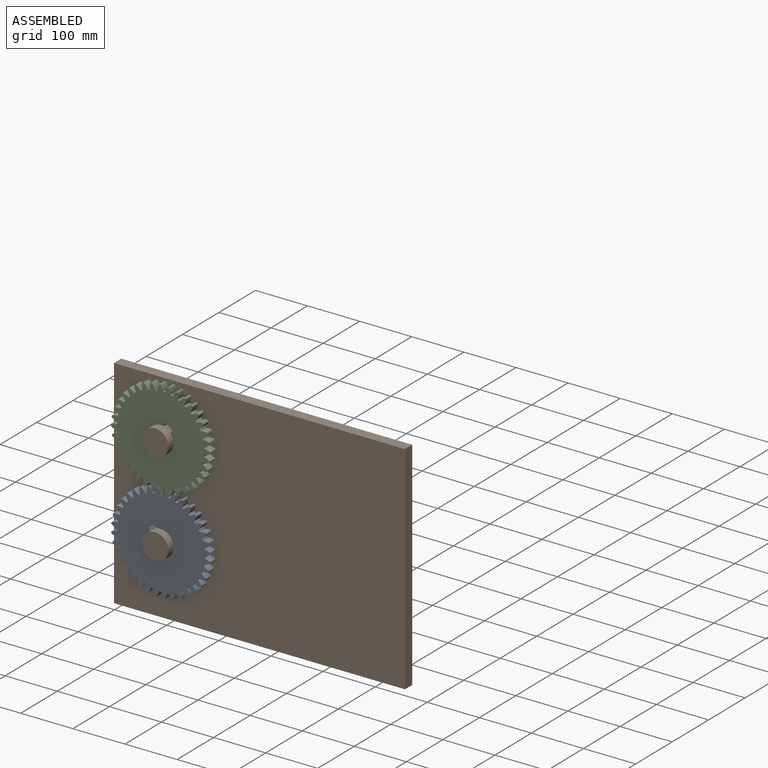
[diagram: assembled view]
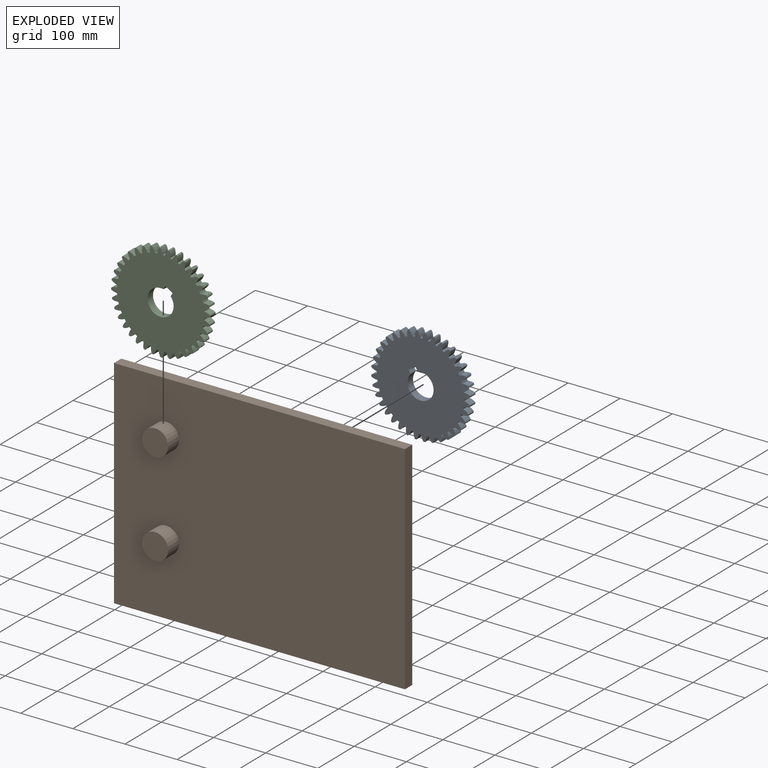
[diagram: exploded view]
GUIDED TOUR — MATED ASSEMBLY (Onshape document 58bb1fac79d0480fcb280c56, AutoMate assembly 58bb1fac79d0480fcb280c56_be9ed5924c863924a831c99a_123c82b034babf95d83967b3_default)

This assembly has 3 components, labeled P0..P2 below (a component is one placed occurrence of a part; the same part can appear more than once), held together by 2 mates. A mate is a constraint between two components; its type names the relative motion it leaves free:
  REVOLUTE — leaves rotation about the listed axis free (a hinge).
Axis/direction vectors are unit vectors and 'through' points are millimeter coordinates, both in the assembly's world frame.

MATES
  1. REVOLUTE "Revolute 2": P2 <-> P1, axis (0.000, 1.000, 0.000) through (-201.82, 0.86, 121.60) mm
  2. REVOLUTE "Revolute 1": P0 <-> P1, axis (0.000, 1.000, 0.000) through (-201.82, 0.86, -58.40) mm

ASSEMBLY ORDER
  1. P1 — the base component [order heuristic]
  2. P0 — core [order heuristic]
  3. P2 [order verified]
Order-tag legend:
  [order verified] — this step's position reverses a verified removal order: the component was checked to insert without passing through the ones already placed.
  [order heuristic] — the first 2 components form the assembly's core: parts whose collision-free extraction could not be verified, listed in mate-graph order.

Of the 3 components, 3 carry the full construction recipe — the FeatureScript program that regenerates the part's solid from scratch; the rest are supplied as boundary geometry only.
Each toured component is shown spotlighted twice — in the assembled view, then in the exploded view, where a leader line traces a displaced component back to its assembled socket (saturated green if recipe-attached, orange if geometry-only; every other component desaturated gray) — followed by its recipe or geometry summary and the mates that hold it.
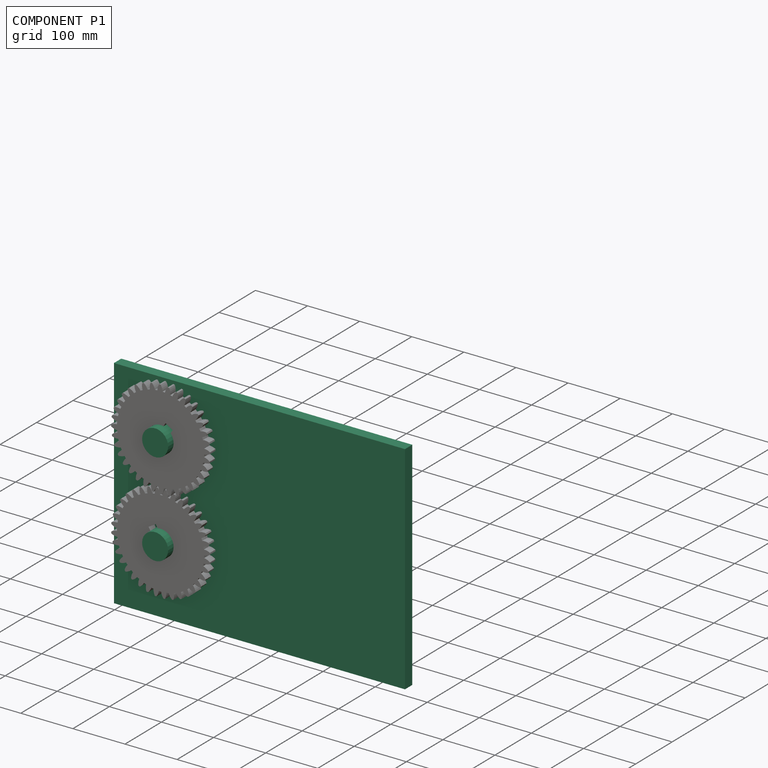
[diagram: component P1 — assembled]
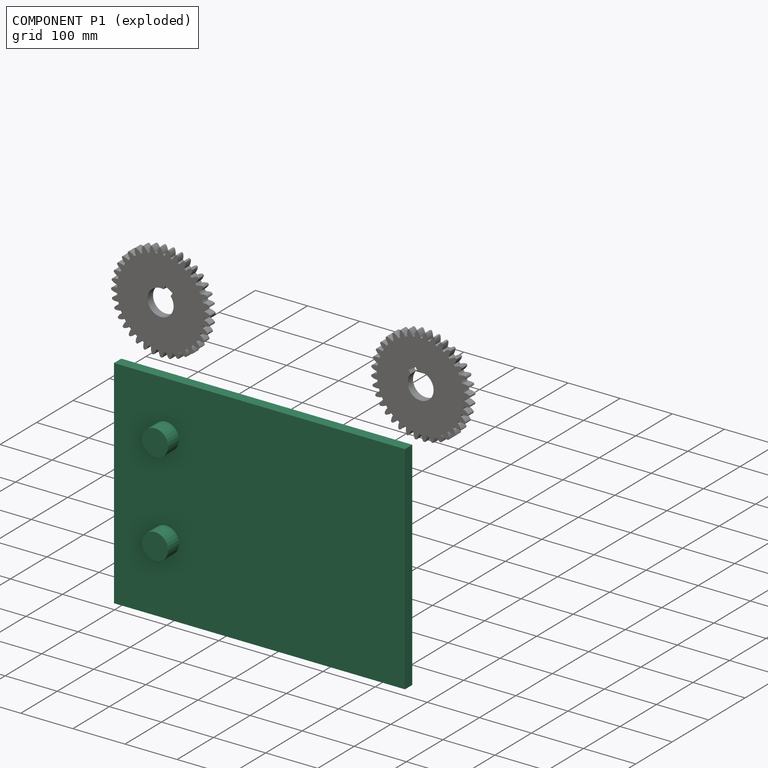
[diagram: component P1 — exploded]
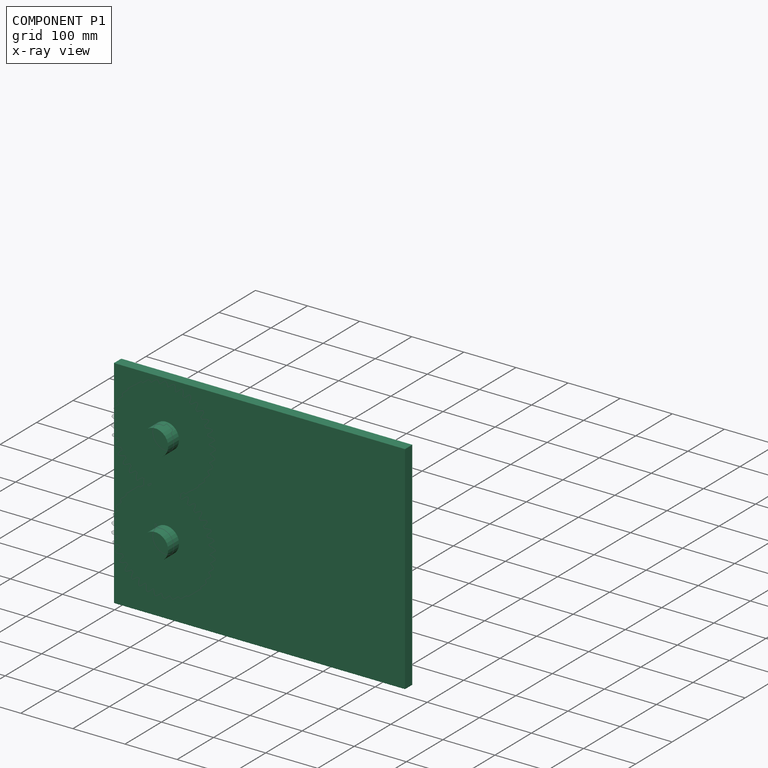
[diagram: component P1 — x-ray view]
COMPONENT P1 — recipe-attached (CADFS 00586321, mesh-verified: the recipe's output STEP matches this component's geometry to below the mesh-comparison resolution (tessellation chordal tolerance ~1.05 mm)).
Held by: REVOLUTE mate "Revolute 2" to P2; REVOLUTE mate "Revolute 1" to P0.
Construction recipe (FeatureScript — the CAD program that rebuilds this solid; sketch coordinates are in the units given by the * unit suffixes, e.g. mm):

FeatureScript 1511;
import(path : "onshape/std/geometry.fs", version : "1511.0");
import(path : "onshape/std/common.fs", version : "1511.0");
const mm = millimeter;
const VERTEX = EntityType.VERTEX;
const EDGE = EntityType.EDGE;
const FACE = EntityType.FACE;
const BODY = EntityType.BODY;
function v(x, y){return vector(x, y);}
function OD(order){return orderDisambiguation(order);}
function OSD(set){return originalSetDisambiguation(set);}
function TD(topology){return topologyDisambiguation(topology);}
function TDD(query){return trueDependencyDisambiguation(query);}
function sQuery(a, b, c) {return sketchEntityQuery(a, b, c);}

annotation { "Feature Type Name" : "Feature", "Feature Type Description" : "" }
export const myFeature = defineFeature(function(context is Context, id is Id, definition is map)
    precondition{}
    {
        {
            var Q0;
            Q0=qCreatedBy(makeId("Front.planeOp"),FACE);
            var sketch = newSketch(context, id + "F0", { "sketchPlane" : qUnion([Q0])});
            skLineSegment(sketch, "E0.bottom", {"start": v(-276.06, 152.14) * mm, "end": v(282.52, 152.14) * mm});
            skLineSegment(sketch, "E0.top", {"start": v(-276.06, -264.48) * mm, "end": v(282.52, -264.48) * mm});
            skLineSegment(sketch, "E0.left", {"start": v(-276.06, 152.14) * mm, "end": v(-276.06, -264.48) * mm});
            skLineSegment(sketch, "E0.right", {"start": v(282.52, 152.14) * mm, "end": v(282.52, -264.48) * mm});
            skPoint(sketch, "E1", {"position": v(-176.06, 52.14) * mm});
            skCircle(sketch, "E2", {"center": v(-176.06, 52.14) * mm, "radius": 25 * mm});
            skCircle(sketch, "E3", {"center": v(-176.06, -127.86) * mm, "radius": 25 * mm});
            skLineSegment(sketch, "E4", {"start": v(-176.06, 52.14) * mm, "end": v(-176.06, -295.36) * mm, "construction": true});
            skSolve(sketch);
        }
        {
            var Q0;
            Q0=makeQuery(id+"F0.imprint","IMPRINT",FACE,{"disambiguationData":[TD([[makeQuery(id+"F0.imprint","IMPRINT",EDGE,{"derivedFrom":sQuery(id+"F0.wireOp",EDGE,"E0.bottom")}),-1.0]])]});
            var Q1;
            Q1=makeQuery(id+"F0.imprint","IMPRINT",FACE,{"disambiguationData":[TD([[makeQuery(id+"F0.imprint","IMPRINT",EDGE,{"derivedFrom":sQuery(id+"F0.wireOp",EDGE,"E2")}),1.0]])]});
            var Q2;
            Q2=makeQuery(id+"F0.imprint","IMPRINT",FACE,{"disambiguationData":[TD([[makeQuery(id+"F0.imprint","IMPRINT",EDGE,{"derivedFrom":sQuery(id+"F0.wireOp",EDGE,"E3")}),1.0]])]});
            extrude(context, id + "F1", {"entities" : qUnion([Q0, Q1, Q2]), "oppositeDirection" : true, "depth" : 20 * mm, "offsetDistance" : 25.4 * mm});
        }
        {
            var Q0;
            Q0=makeQuery(id+"F0.imprint","IMPRINT",FACE,{"disambiguationData":[TD([[makeQuery(id+"F0.imprint","IMPRINT",EDGE,{"derivedFrom":sQuery(id+"F0.wireOp",EDGE,"E2")}),1.0]])]});
            var Q1;
            Q1=makeQuery(id+"F0.imprint","IMPRINT",FACE,{"disambiguationData":[TD([[makeQuery(id+"F0.imprint","IMPRINT",EDGE,{"derivedFrom":sQuery(id+"F0.wireOp",EDGE,"E3")}),1.0]])]});
            extrude(context, id + "F2", {"entities" : qUnion([Q0, Q1]), "operationType" : NewBodyOperationType.ADD, "depth" : 30 * mm, "offsetDistance" : 25.4 * mm});
        }
    });
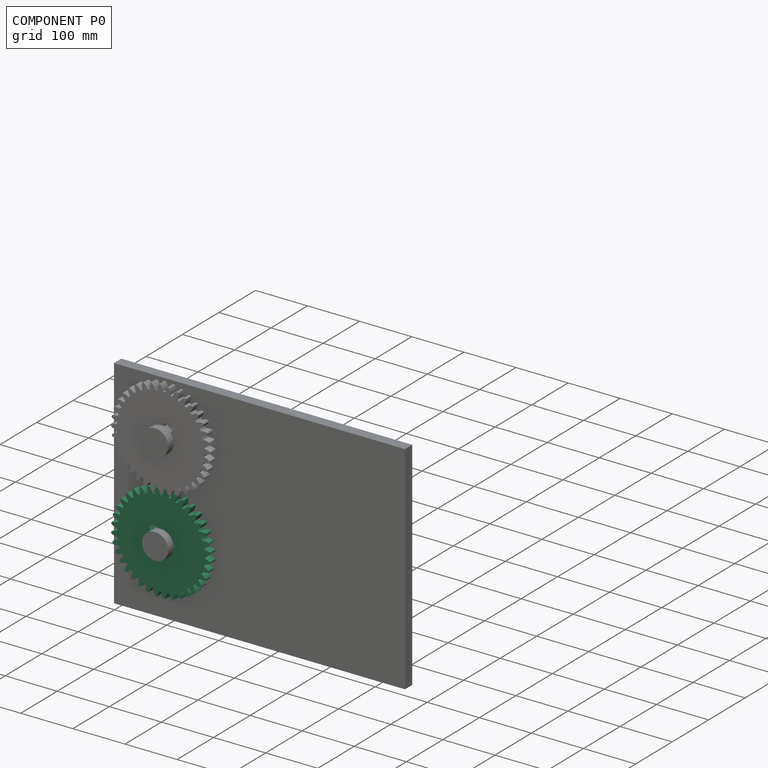
[diagram: component P0 — assembled]
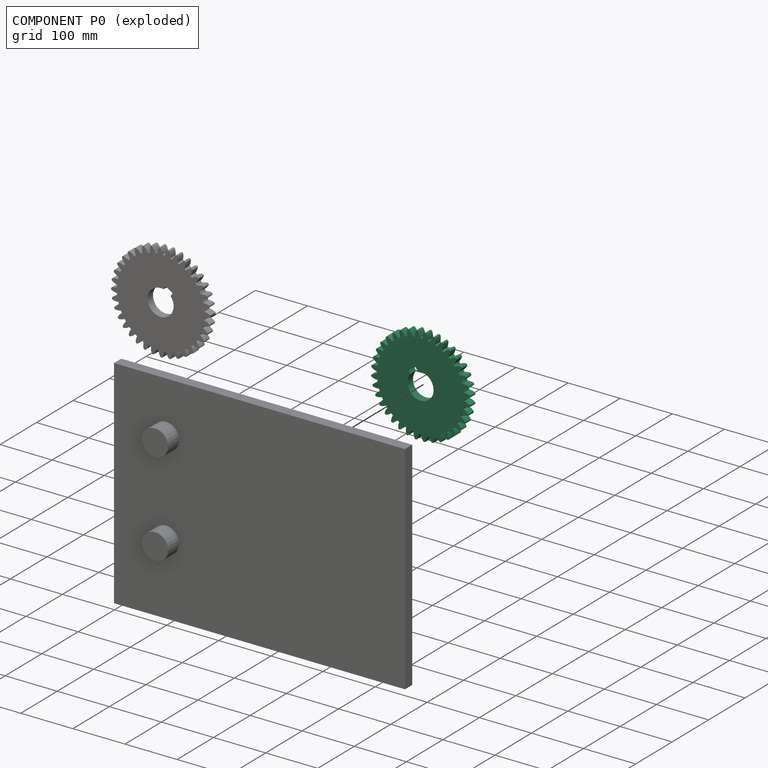
[diagram: component P0 — exploded]
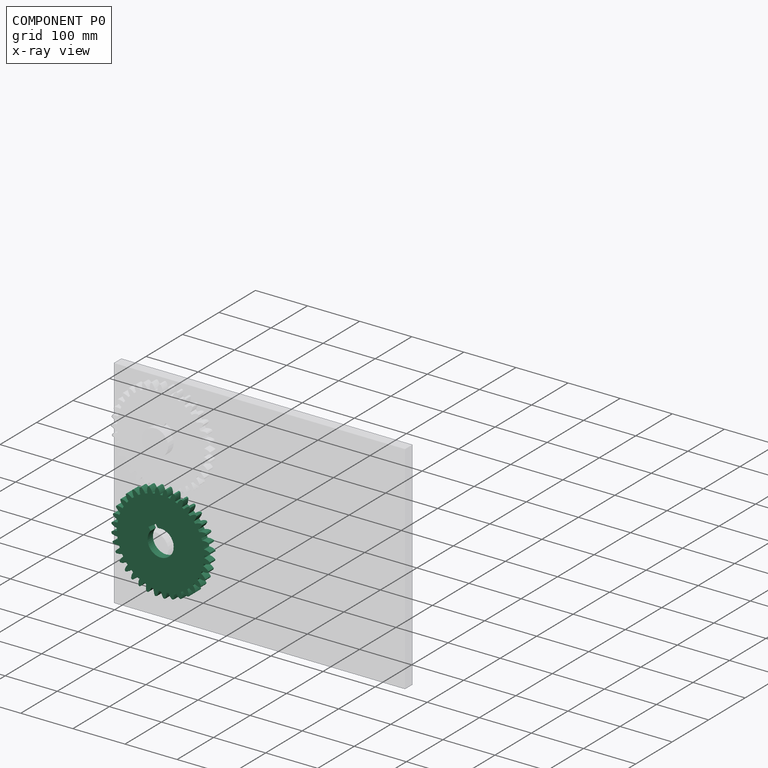
[diagram: component P0 — x-ray view]
COMPONENT P0 — recipe-attached (CADFS 00586315, mesh-verified: the recipe's output STEP matches this component's geometry to below the mesh-comparison resolution (tessellation chordal tolerance ~0.404 mm)).
Held by: REVOLUTE mate "Revolute 1" to P1.
Construction recipe (FeatureScript — the CAD program that rebuilds this solid; sketch coordinates are in the units given by the * unit suffixes, e.g. mm):

FeatureScript 1511;
import(path : "onshape/std/geometry.fs", version : "1511.0");
import(path : "onshape/std/common.fs", version : "1511.0");
const mm = millimeter;
const VERTEX = EntityType.VERTEX;
const EDGE = EntityType.EDGE;
const FACE = EntityType.FACE;
const BODY = EntityType.BODY;
function v(x, y){return vector(x, y);}
function OD(order){return orderDisambiguation(order);}
function OSD(set){return originalSetDisambiguation(set);}
function TD(topology){return topologyDisambiguation(topology);}
function TDD(query){return trueDependencyDisambiguation(query);}
function sQuery(a, b, c) {return sketchEntityQuery(a, b, c);}

annotation { "Feature Type Name" : "Feature", "Feature Type Description" : "" }
export const myFeature = defineFeature(function(context is Context, id is Id, definition is map)
    precondition{}
    {
        {
            var Q0;
            Q0=qCreatedBy(makeId("Front.planeOp"),FACE);
            var sketch = newSketch(context, id + "F0", { "sketchPlane" : qUnion([Q0])});
            skCircle(sketch, "E0", {"center": v(0, 0) * mm, "radius": 83.75 * mm});
            skCircle(sketch, "E1", {"center": v(0, 0) * mm, "radius": 90 * mm, "construction": true});
            skCircle(sketch, "E2", {"center": v(0, 0) * mm, "radius": 95 * mm, "construction": true});
            skLineSegment(sketch, "E3", {"start": v(0, 0) * mm, "end": v(0, 97.65) * mm, "construction": true});
            skLineSegment(sketch, "E4", {"start": v(0, 0) * mm, "end": v(-7.83, 179.33) * mm, "construction": true});
            skLineSegment(sketch, "E5", {"start": v(0, 90) * mm, "end": v(-217.65, 90) * mm, "construction": true});
            skLineSegment(sketch, "E6", {"start": v(0, 90) * mm, "end": v(-200.71, 16.95) * mm, "construction": true});
            skCircle(sketch, "E7", {"center": v(0, 0) * mm, "radius": 84.57 * mm, "construction": true});
            skCircle(sketch, "E8", {"center": v(0, 90) * mm, "radius": 22.5 * mm, "construction": true});
            skArc(sketch, "E9", {"start": v(0, 90) * mm, "mid": v(-1.18, 92.57) * mm, "end": v(-2.66, 94.96) * mm});
            skArc(sketch, "E10", {"start": v(1.43, 83.74) * mm, "mid": v(0.94, 86.92) * mm, "end": v(0, 90) * mm});
            skArc(sketch, "E11.MirrorCS", {"start": v(-8.72, 83.3) * mm, "mid": v(-8.5, 86.5) * mm, "end": v(-7.84, 89.66) * mm});
            skArc(sketch, "E12.MirrorCS", {"start": v(-7.84, 89.66) * mm, "mid": v(-6.9, 92.32) * mm, "end": v(-5.62, 94.83) * mm});
            skArc(sketch, "E13", {"start": v(-5.62, 94.83) * mm, "mid": v(-4.14, 94.9) * mm, "end": v(-2.66, 94.96) * mm});
            skSolve(sketch);
        }
        {
            var Q0;
            Q0=qSketchRegion(id+"F0",true);
            extrude(context, id + "F1", {"entities" : qUnion([Q0]), "depth" : 15 * mm, "offsetDistance" : 25.4 * mm});
        }
        {
            var Q0;
            Q0=makeQuery(id+"F1.opExtrude","SWEPT_BODY",BODY,{"disambiguationData":[OSD([sQuery(id+"F0.wireOp",EDGE,"E0"),sQuery(id+"F0.wireOp",EDGE,"E9"),sQuery(id+"F0.wireOp",EDGE,"E10"),sQuery(id+"F0.wireOp",EDGE,"E11.MirrorCS"),sQuery(id+"F0.wireOp",EDGE,"E12.MirrorCS"),sQuery(id+"F0.wireOp",EDGE,"E13")])]});
            var Q1;
            Q1=makeQuery(id+"F1.opExtrude","SWEPT_FACE",FACE,{"disambiguationData":[OSD([sQuery(id+"F0.wireOp",EDGE,"E0")])]});
            circularPattern(context, id + "F2", {"entities" : qUnion([Q0]), "axis" : qUnion([Q1]), "angle" : 360 * degree, "instanceCount" : 36, "equalSpace" : true});
        }
        {
            var Q0;
            Q0=makeQuery(id+"F2.opPattern","COPY",BODY,{"derivedFrom":makeQuery(id+"F1.opExtrude","SWEPT_BODY",BODY,{"disambiguationData":[OSD([sQuery(id+"F0.wireOp",EDGE,"E0"),sQuery(id+"F0.wireOp",EDGE,"E9"),sQuery(id+"F0.wireOp",EDGE,"E10"),sQuery(id+"F0.wireOp",EDGE,"E11.MirrorCS"),sQuery(id+"F0.wireOp",EDGE,"E12.MirrorCS"),sQuery(id+"F0.wireOp",EDGE,"E13")])]}),"instanceName":"17"});
            var Q1;
            Q1=makeQuery(id+"F2.opPattern","COPY",BODY,{"derivedFrom":makeQuery(id+"F1.opExtrude","SWEPT_BODY",BODY,{"disambiguationData":[OSD([sQuery(id+"F0.wireOp",EDGE,"E0"),sQuery(id+"F0.wireOp",EDGE,"E9"),sQuery(id+"F0.wireOp",EDGE,"E10"),sQuery(id+"F0.wireOp",EDGE,"E11.MirrorCS"),sQuery(id+"F0.wireOp",EDGE,"E12.MirrorCS"),sQuery(id+"F0.wireOp",EDGE,"E13")])]}),"instanceName":"13"});
            var Q2;
            Q2=makeQuery(id+"F1.opExtrude","SWEPT_BODY",BODY,{"disambiguationData":[OSD([sQuery(id+"F0.wireOp",EDGE,"E0"),sQuery(id+"F0.wireOp",EDGE,"E9"),sQuery(id+"F0.wireOp",EDGE,"E10"),sQuery(id+"F0.wireOp",EDGE,"E11.MirrorCS"),sQuery(id+"F0.wireOp",EDGE,"E12.MirrorCS"),sQuery(id+"F0.wireOp",EDGE,"E13")])]});
            var Q3;
            Q3=makeQuery(id+"F2.opPattern","COPY",BODY,{"derivedFrom":makeQuery(id+"F1.opExtrude","SWEPT_BODY",BODY,{"disambiguationData":[OSD([sQuery(id+"F0.wireOp",EDGE,"E0"),sQuery(id+"F0.wireOp",EDGE,"E9"),sQuery(id+"F0.wireOp",EDGE,"E10"),sQuery(id+"F0.wireOp",EDGE,"E11.MirrorCS"),sQuery(id+"F0.wireOp",EDGE,"E12.MirrorCS"),sQuery(id+"F0.wireOp",EDGE,"E13")])]}),"instanceName":"7"});
            var Q4;
            Q4=makeQuery(id+"F2.opPattern","COPY",BODY,{"derivedFrom":makeQuery(id+"F1.opExtrude","SWEPT_BODY",BODY,{"disambiguationData":[OSD([sQuery(id+"F0.wireOp",EDGE,"E0"),sQuery(id+"F0.wireOp",EDGE,"E9"),sQuery(id+"F0.wireOp",EDGE,"E10"),sQuery(id+"F0.wireOp",EDGE,"E11.MirrorCS"),sQuery(id+"F0.wireOp",EDGE,"E12.MirrorCS"),sQuery(id+"F0.wireOp",EDGE,"E13")])]}),"instanceName":"18"});
            var Q5;
            Q5=makeQuery(id+"F2.opPattern","COPY",BODY,{"derivedFrom":makeQuery(id+"F1.opExtrude","SWEPT_BODY",BODY,{"disambiguationData":[OSD([sQuery(id+"F0.wireOp",EDGE,"E0"),sQuery(id+"F0.wireOp",EDGE,"E9"),sQuery(id+"F0.wireOp",EDGE,"E10"),sQuery(id+"F0.wireOp",EDGE,"E11.MirrorCS"),sQuery(id+"F0.wireOp",EDGE,"E12.MirrorCS"),sQuery(id+"F0.wireOp",EDGE,"E13")])]}),"instanceName":"3"});
            var Q6;
            Q6=makeQuery(id+"F2.opPattern","COPY",BODY,{"derivedFrom":makeQuery(id+"F1.opExtrude","SWEPT_BODY",BODY,{"disambiguationData":[OSD([sQuery(id+"F0.wireOp",EDGE,"E0"),sQuery(id+"F0.wireOp",EDGE,"E9"),sQuery(id+"F0.wireOp",EDGE,"E10"),sQuery(id+"F0.wireOp",EDGE,"E11.MirrorCS"),sQuery(id+"F0.wireOp",EDGE,"E12.MirrorCS"),sQuery(id+"F0.wireOp",EDGE,"E13")])]}),"instanceName":"16"});
            var Q7;
            Q7=makeQuery(id+"F2.opPattern","COPY",BODY,{"derivedFrom":makeQuery(id+"F1.opExtrude","SWEPT_BODY",BODY,{"disambiguationData":[OSD([sQuery(id+"F0.wireOp",EDGE,"E0"),sQuery(id+"F0.wireOp",EDGE,"E9"),sQuery(id+"F0.wireOp",EDGE,"E10"),sQuery(id+"F0.wireOp",EDGE,"E11.MirrorCS"),sQuery(id+"F0.wireOp",EDGE,"E12.MirrorCS"),sQuery(id+"F0.wireOp",EDGE,"E13")])]}),"instanceName":"8"});
            var Q8;
            Q8=makeQuery(id+"F2.opPattern","COPY",BODY,{"derivedFrom":makeQuery(id+"F1.opExtrude","SWEPT_BODY",BODY,{"disambiguationData":[OSD([sQuery(id+"F0.wireOp",EDGE,"E0"),sQuery(id+"F0.wireOp",EDGE,"E9"),sQuery(id+"F0.wireOp",EDGE,"E10"),sQuery(id+"F0.wireOp",EDGE,"E11.MirrorCS"),sQuery(id+"F0.wireOp",EDGE,"E12.MirrorCS"),sQuery(id+"F0.wireOp",EDGE,"E13")])]}),"instanceName":"19"});
            var Q9;
            Q9=makeQuery(id+"F2.opPattern","COPY",BODY,{"derivedFrom":makeQuery(id+"F1.opExtrude","SWEPT_BODY",BODY,{"disambiguationData":[OSD([sQuery(id+"F0.wireOp",EDGE,"E0"),sQuery(id+"F0.wireOp",EDGE,"E9"),sQuery(id+"F0.wireOp",EDGE,"E10"),sQuery(id+"F0.wireOp",EDGE,"E11.MirrorCS"),sQuery(id+"F0.wireOp",EDGE,"E12.MirrorCS"),sQuery(id+"F0.wireOp",EDGE,"E13")])]}),"instanceName":"1"});
            var Q10;
            Q10=makeQuery(id+"F2.opPattern","COPY",BODY,{"derivedFrom":makeQuery(id+"F1.opExtrude","SWEPT_BODY",BODY,{"disambiguationData":[OSD([sQuery(id+"F0.wireOp",EDGE,"E0"),sQuery(id+"F0.wireOp",EDGE,"E9"),sQuery(id+"F0.wireOp",EDGE,"E10"),sQuery(id+"F0.wireOp",EDGE,"E11.MirrorCS"),sQuery(id+"F0.wireOp",EDGE,"E12.MirrorCS"),sQuery(id+"F0.wireOp",EDGE,"E13")])]}),"instanceName":"34"});
            var Q11;
            Q11=makeQuery(id+"F2.opPattern","COPY",BODY,{"derivedFrom":makeQuery(id+"F1.opExtrude","SWEPT_BODY",BODY,{"disambiguationData":[OSD([sQuery(id+"F0.wireOp",EDGE,"E0"),sQuery(id+"F0.wireOp",EDGE,"E9"),sQuery(id+"F0.wireOp",EDGE,"E10"),sQuery(id+"F0.wireOp",EDGE,"E11.MirrorCS"),sQuery(id+"F0.wireOp",EDGE,"E12.MirrorCS"),sQuery(id+"F0.wireOp",EDGE,"E13")])]}),"instanceName":"33"});
            var Q12;
            Q12=makeQuery(id+"F2.opPattern","COPY",BODY,{"derivedFrom":makeQuery(id+"F1.opExtrude","SWEPT_BODY",BODY,{"disambiguationData":[OSD([sQuery(id+"F0.wireOp",EDGE,"E0"),sQuery(id+"F0.wireOp",EDGE,"E9"),sQuery(id+"F0.wireOp",EDGE,"E10"),sQuery(id+"F0.wireOp",EDGE,"E11.MirrorCS"),sQuery(id+"F0.wireOp",EDGE,"E12.MirrorCS"),sQuery(id+"F0.wireOp",EDGE,"E13")])]}),"instanceName":"32"});
            var Q13;
            Q13=makeQuery(id+"F2.opPattern","COPY",BODY,{"derivedFrom":makeQuery(id+"F1.opExtrude","SWEPT_BODY",BODY,{"disambiguationData":[OSD([sQuery(id+"F0.wireOp",EDGE,"E0"),sQuery(id+"F0.wireOp",EDGE,"E9"),sQuery(id+"F0.wireOp",EDGE,"E10"),sQuery(id+"F0.wireOp",EDGE,"E11.MirrorCS"),sQuery(id+"F0.wireOp",EDGE,"E12.MirrorCS"),sQuery(id+"F0.wireOp",EDGE,"E13")])]}),"instanceName":"31"});
            var Q14;
            Q14=makeQuery(id+"F2.opPattern","COPY",BODY,{"derivedFrom":makeQuery(id+"F1.opExtrude","SWEPT_BODY",BODY,{"disambiguationData":[OSD([sQuery(id+"F0.wireOp",EDGE,"E0"),sQuery(id+"F0.wireOp",EDGE,"E9"),sQuery(id+"F0.wireOp",EDGE,"E10"),sQuery(id+"F0.wireOp",EDGE,"E11.MirrorCS"),sQuery(id+"F0.wireOp",EDGE,"E12.MirrorCS"),sQuery(id+"F0.wireOp",EDGE,"E13")])]}),"instanceName":"30"});
            var Q15;
            Q15=makeQuery(id+"F2.opPattern","COPY",BODY,{"derivedFrom":makeQuery(id+"F1.opExtrude","SWEPT_BODY",BODY,{"disambiguationData":[OSD([sQuery(id+"F0.wireOp",EDGE,"E0"),sQuery(id+"F0.wireOp",EDGE,"E9"),sQuery(id+"F0.wireOp",EDGE,"E10"),sQuery(id+"F0.wireOp",EDGE,"E11.MirrorCS"),sQuery(id+"F0.wireOp",EDGE,"E12.MirrorCS"),sQuery(id+"F0.wireOp",EDGE,"E13")])]}),"instanceName":"29"});
            var Q16;
            Q16=makeQuery(id+"F2.opPattern","COPY",BODY,{"derivedFrom":makeQuery(id+"F1.opExtrude","SWEPT_BODY",BODY,{"disambiguationData":[OSD([sQuery(id+"F0.wireOp",EDGE,"E0"),sQuery(id+"F0.wireOp",EDGE,"E9"),sQuery(id+"F0.wireOp",EDGE,"E10"),sQuery(id+"F0.wireOp",EDGE,"E11.MirrorCS"),sQuery(id+"F0.wireOp",EDGE,"E12.MirrorCS"),sQuery(id+"F0.wireOp",EDGE,"E13")])]}),"instanceName":"28"});
            var Q17;
            Q17=makeQuery(id+"F2.opPattern","COPY",BODY,{"derivedFrom":makeQuery(id+"F1.opExtrude","SWEPT_BODY",BODY,{"disambiguationData":[OSD([sQuery(id+"F0.wireOp",EDGE,"E0"),sQuery(id+"F0.wireOp",EDGE,"E9"),sQuery(id+"F0.wireOp",EDGE,"E10"),sQuery(id+"F0.wireOp",EDGE,"E11.MirrorCS"),sQuery(id+"F0.wireOp",EDGE,"E12.MirrorCS"),sQuery(id+"F0.wireOp",EDGE,"E13")])]}),"instanceName":"27"});
            var Q18;
            Q18=makeQuery(id+"F2.opPattern","COPY",BODY,{"derivedFrom":makeQuery(id+"F1.opExtrude","SWEPT_BODY",BODY,{"disambiguationData":[OSD([sQuery(id+"F0.wireOp",EDGE,"E0"),sQuery(id+"F0.wireOp",EDGE,"E9"),sQuery(id+"F0.wireOp",EDGE,"E10"),sQuery(id+"F0.wireOp",EDGE,"E11.MirrorCS"),sQuery(id+"F0.wireOp",EDGE,"E12.MirrorCS"),sQuery(id+"F0.wireOp",EDGE,"E13")])]}),"instanceName":"26"});
            var Q19;
            Q19=makeQuery(id+"F2.opPattern","COPY",BODY,{"derivedFrom":makeQuery(id+"F1.opExtrude","SWEPT_BODY",BODY,{"disambiguationData":[OSD([sQuery(id+"F0.wireOp",EDGE,"E0"),sQuery(id+"F0.wireOp",EDGE,"E9"),sQuery(id+"F0.wireOp",EDGE,"E10"),sQuery(id+"F0.wireOp",EDGE,"E11.MirrorCS"),sQuery(id+"F0.wireOp",EDGE,"E12.MirrorCS"),sQuery(id+"F0.wireOp",EDGE,"E13")])]}),"instanceName":"25"});
            var Q20;
            Q20=makeQuery(id+"F2.opPattern","COPY",BODY,{"derivedFrom":makeQuery(id+"F1.opExtrude","SWEPT_BODY",BODY,{"disambiguationData":[OSD([sQuery(id+"F0.wireOp",EDGE,"E0"),sQuery(id+"F0.wireOp",EDGE,"E9"),sQuery(id+"F0.wireOp",EDGE,"E10"),sQuery(id+"F0.wireOp",EDGE,"E11.MirrorCS"),sQuery(id+"F0.wireOp",EDGE,"E12.MirrorCS"),sQuery(id+"F0.wireOp",EDGE,"E13")])]}),"instanceName":"23"});
            var Q21;
            Q21=makeQuery(id+"F2.opPattern","COPY",BODY,{"derivedFrom":makeQuery(id+"F1.opExtrude","SWEPT_BODY",BODY,{"disambiguationData":[OSD([sQuery(id+"F0.wireOp",EDGE,"E0"),sQuery(id+"F0.wireOp",EDGE,"E9"),sQuery(id+"F0.wireOp",EDGE,"E10"),sQuery(id+"F0.wireOp",EDGE,"E11.MirrorCS"),sQuery(id+"F0.wireOp",EDGE,"E12.MirrorCS"),sQuery(id+"F0.wireOp",EDGE,"E13")])]}),"instanceName":"5"});
            var Q22;
            Q22=makeQuery(id+"F2.opPattern","COPY",BODY,{"derivedFrom":makeQuery(id+"F1.opExtrude","SWEPT_BODY",BODY,{"disambiguationData":[OSD([sQuery(id+"F0.wireOp",EDGE,"E0"),sQuery(id+"F0.wireOp",EDGE,"E9"),sQuery(id+"F0.wireOp",EDGE,"E10"),sQuery(id+"F0.wireOp",EDGE,"E11.MirrorCS"),sQuery(id+"F0.wireOp",EDGE,"E12.MirrorCS"),sQuery(id+"F0.wireOp",EDGE,"E13")])]}),"instanceName":"2"});
            var Q23;
            Q23=makeQuery(id+"F2.opPattern","COPY",BODY,{"derivedFrom":makeQuery(id+"F1.opExtrude","SWEPT_BODY",BODY,{"disambiguationData":[OSD([sQuery(id+"F0.wireOp",EDGE,"E0"),sQuery(id+"F0.wireOp",EDGE,"E9"),sQuery(id+"F0.wireOp",EDGE,"E10"),sQuery(id+"F0.wireOp",EDGE,"E11.MirrorCS"),sQuery(id+"F0.wireOp",EDGE,"E12.MirrorCS"),sQuery(id+"F0.wireOp",EDGE,"E13")])]}),"instanceName":"9"});
            var Q24;
            Q24=makeQuery(id+"F2.opPattern","COPY",BODY,{"derivedFrom":makeQuery(id+"F1.opExtrude","SWEPT_BODY",BODY,{"disambiguationData":[OSD([sQuery(id+"F0.wireOp",EDGE,"E0"),sQuery(id+"F0.wireOp",EDGE,"E9"),sQuery(id+"F0.wireOp",EDGE,"E10"),sQuery(id+"F0.wireOp",EDGE,"E11.MirrorCS"),sQuery(id+"F0.wireOp",EDGE,"E12.MirrorCS"),sQuery(id+"F0.wireOp",EDGE,"E13")])]}),"instanceName":"22"});
            var Q25;
            Q25=makeQuery(id+"F2.opPattern","COPY",BODY,{"derivedFrom":makeQuery(id+"F1.opExtrude","SWEPT_BODY",BODY,{"disambiguationData":[OSD([sQuery(id+"F0.wireOp",EDGE,"E0"),sQuery(id+"F0.wireOp",EDGE,"E9"),sQuery(id+"F0.wireOp",EDGE,"E10"),sQuery(id+"F0.wireOp",EDGE,"E11.MirrorCS"),sQuery(id+"F0.wireOp",EDGE,"E12.MirrorCS"),sQuery(id+"F0.wireOp",EDGE,"E13")])]}),"instanceName":"24"});
            var Q26;
            Q26=makeQuery(id+"F2.opPattern","COPY",BODY,{"derivedFrom":makeQuery(id+"F1.opExtrude","SWEPT_BODY",BODY,{"disambiguationData":[OSD([sQuery(id+"F0.wireOp",EDGE,"E0"),sQuery(id+"F0.wireOp",EDGE,"E9"),sQuery(id+"F0.wireOp",EDGE,"E10"),sQuery(id+"F0.wireOp",EDGE,"E11.MirrorCS"),sQuery(id+"F0.wireOp",EDGE,"E12.MirrorCS"),sQuery(id+"F0.wireOp",EDGE,"E13")])]}),"instanceName":"35"});
            var Q27;
            Q27=makeQuery(id+"F2.opPattern","COPY",BODY,{"derivedFrom":makeQuery(id+"F1.opExtrude","SWEPT_BODY",BODY,{"disambiguationData":[OSD([sQuery(id+"F0.wireOp",EDGE,"E0"),sQuery(id+"F0.wireOp",EDGE,"E9"),sQuery(id+"F0.wireOp",EDGE,"E10"),sQuery(id+"F0.wireOp",EDGE,"E11.MirrorCS"),sQuery(id+"F0.wireOp",EDGE,"E12.MirrorCS"),sQuery(id+"F0.wireOp",EDGE,"E13")])]}),"instanceName":"12"});
            var Q28;
            Q28=makeQuery(id+"F2.opPattern","COPY",BODY,{"derivedFrom":makeQuery(id+"F1.opExtrude","SWEPT_BODY",BODY,{"disambiguationData":[OSD([sQuery(id+"F0.wireOp",EDGE,"E0"),sQuery(id+"F0.wireOp",EDGE,"E9"),sQuery(id+"F0.wireOp",EDGE,"E10"),sQuery(id+"F0.wireOp",EDGE,"E11.MirrorCS"),sQuery(id+"F0.wireOp",EDGE,"E12.MirrorCS"),sQuery(id+"F0.wireOp",EDGE,"E13")])]}),"instanceName":"10"});
            var Q29;
            Q29=makeQuery(id+"F2.opPattern","COPY",BODY,{"derivedFrom":makeQuery(id+"F1.opExtrude","SWEPT_BODY",BODY,{"disambiguationData":[OSD([sQuery(id+"F0.wireOp",EDGE,"E0"),sQuery(id+"F0.wireOp",EDGE,"E9"),sQuery(id+"F0.wireOp",EDGE,"E10"),sQuery(id+"F0.wireOp",EDGE,"E11.MirrorCS"),sQuery(id+"F0.wireOp",EDGE,"E12.MirrorCS"),sQuery(id+"F0.wireOp",EDGE,"E13")])]}),"instanceName":"6"});
            var Q30;
            Q30=makeQuery(id+"F2.opPattern","COPY",BODY,{"derivedFrom":makeQuery(id+"F1.opExtrude","SWEPT_BODY",BODY,{"disambiguationData":[OSD([sQuery(id+"F0.wireOp",EDGE,"E0"),sQuery(id+"F0.wireOp",EDGE,"E9"),sQuery(id+"F0.wireOp",EDGE,"E10"),sQuery(id+"F0.wireOp",EDGE,"E11.MirrorCS"),sQuery(id+"F0.wireOp",EDGE,"E12.MirrorCS"),sQuery(id+"F0.wireOp",EDGE,"E13")])]}),"instanceName":"11"});
            var Q31;
            Q31=makeQuery(id+"F2.opPattern","COPY",BODY,{"derivedFrom":makeQuery(id+"F1.opExtrude","SWEPT_BODY",BODY,{"disambiguationData":[OSD([sQuery(id+"F0.wireOp",EDGE,"E0"),sQuery(id+"F0.wireOp",EDGE,"E9"),sQuery(id+"F0.wireOp",EDGE,"E10"),sQuery(id+"F0.wireOp",EDGE,"E11.MirrorCS"),sQuery(id+"F0.wireOp",EDGE,"E12.MirrorCS"),sQuery(id+"F0.wireOp",EDGE,"E13")])]}),"instanceName":"14"});
            var Q32;
            Q32=makeQuery(id+"F2.opPattern","COPY",BODY,{"derivedFrom":makeQuery(id+"F1.opExtrude","SWEPT_BODY",BODY,{"disambiguationData":[OSD([sQuery(id+"F0.wireOp",EDGE,"E0"),sQuery(id+"F0.wireOp",EDGE,"E9"),sQuery(id+"F0.wireOp",EDGE,"E10"),sQuery(id+"F0.wireOp",EDGE,"E11.MirrorCS"),sQuery(id+"F0.wireOp",EDGE,"E12.MirrorCS"),sQuery(id+"F0.wireOp",EDGE,"E13")])]}),"instanceName":"4"});
            var Q33;
            Q33=makeQuery(id+"F2.opPattern","COPY",BODY,{"derivedFrom":makeQuery(id+"F1.opExtrude","SWEPT_BODY",BODY,{"disambiguationData":[OSD([sQuery(id+"F0.wireOp",EDGE,"E0"),sQuery(id+"F0.wireOp",EDGE,"E9"),sQuery(id+"F0.wireOp",EDGE,"E10"),sQuery(id+"F0.wireOp",EDGE,"E11.MirrorCS"),sQuery(id+"F0.wireOp",EDGE,"E12.MirrorCS"),sQuery(id+"F0.wireOp",EDGE,"E13")])]}),"instanceName":"21"});
            var Q34;
            Q34=makeQuery(id+"F2.opPattern","COPY",BODY,{"derivedFrom":makeQuery(id+"F1.opExtrude","SWEPT_BODY",BODY,{"disambiguationData":[OSD([sQuery(id+"F0.wireOp",EDGE,"E0"),sQuery(id+"F0.wireOp",EDGE,"E9"),sQuery(id+"F0.wireOp",EDGE,"E10"),sQuery(id+"F0.wireOp",EDGE,"E11.MirrorCS"),sQuery(id+"F0.wireOp",EDGE,"E12.MirrorCS"),sQuery(id+"F0.wireOp",EDGE,"E13")])]}),"instanceName":"20"});
            var Q35;
            Q35=makeQuery(id+"F2.opPattern","COPY",BODY,{"derivedFrom":makeQuery(id+"F1.opExtrude","SWEPT_BODY",BODY,{"disambiguationData":[OSD([sQuery(id+"F0.wireOp",EDGE,"E0"),sQuery(id+"F0.wireOp",EDGE,"E9"),sQuery(id+"F0.wireOp",EDGE,"E10"),sQuery(id+"F0.wireOp",EDGE,"E11.MirrorCS"),sQuery(id+"F0.wireOp",EDGE,"E12.MirrorCS"),sQuery(id+"F0.wireOp",EDGE,"E13")])]}),"instanceName":"15"});
            booleanBodies(context, id + "F3", {"operationType" : BooleanOperationType.UNION, "tools" : qUnion([Q0, Q1, Q2, Q3, Q4, Q5, Q6, Q7, Q8, Q9, Q10, Q11, Q12, Q13, Q14, Q15, Q16, Q17, Q18, Q19, Q20, Q21, Q22, Q23, Q24, Q25, Q26, Q27, Q28, Q29, Q30, Q31, Q32, Q33, Q34, Q35])});
        }
        {
            var Q0;
            {var subQ0=makeQuery(id+"F1.opExtrude","CAP_FACE",FACE,{"disambiguationData":[OSD([sQuery(id+"F0.wireOp",EDGE,"E0"),sQuery(id+"F0.wireOp",EDGE,"E9"),sQuery(id+"F0.wireOp",EDGE,"E10"),sQuery(id+"F0.wireOp",EDGE,"E11.MirrorCS"),sQuery(id+"F0.wireOp",EDGE,"E12.MirrorCS"),sQuery(id+"F0.wireOp",EDGE,"E13")])],"isStart":true});Q0=makeQuery(id+"F3.opBoolean","MERGE",FACE,{"derivedFrom":[subQ0,makeQuery(id+"F2.opPattern","COPY",FACE,{"derivedFrom":subQ0,"instanceName":"1"}),makeQuery(id+"F2.opPattern","COPY",FACE,{"derivedFrom":subQ0,"instanceName":"2"}),makeQuery(id+"F2.opPattern","COPY",FACE,{"derivedFrom":subQ0,"instanceName":"3"}),makeQuery(id+"F2.opPattern","COPY",FACE,{"derivedFrom":subQ0,"instanceName":"4"}),makeQuery(id+"F2.opPattern","COPY",FACE,{"derivedFrom":subQ0,"instanceName":"5"}),makeQuery(id+"F2.opPattern","COPY",FACE,{"derivedFrom":subQ0,"instanceName":"6"}),makeQuery(id+"F2.opPattern","COPY",FACE,{"derivedFrom":subQ0,"instanceName":"7"}),makeQuery(id+"F2.opPattern","COPY",FACE,{"derivedFrom":subQ0,"instanceName":"8"}),makeQuery(id+"F2.opPattern","COPY",FACE,{"derivedFrom":subQ0,"instanceName":"9"}),makeQuery(id+"F2.opPattern","COPY",FACE,{"derivedFrom":subQ0,"instanceName":"10"}),makeQuery(id+"F2.opPattern","COPY",FACE,{"derivedFrom":subQ0,"instanceName":"11"}),makeQuery(id+"F2.opPattern","COPY",FACE,{"derivedFrom":subQ0,"instanceName":"12"}),makeQuery(id+"F2.opPattern","COPY",FACE,{"derivedFrom":subQ0,"instanceName":"13"}),makeQuery(id+"F2.opPattern","COPY",FACE,{"derivedFrom":subQ0,"instanceName":"14"}),makeQuery(id+"F2.opPattern","COPY",FACE,{"derivedFrom":subQ0,"instanceName":"15"}),makeQuery(id+"F2.opPattern","COPY",FACE,{"derivedFrom":subQ0,"instanceName":"16"}),makeQuery(id+"F2.opPattern","COPY",FACE,{"derivedFrom":subQ0,"instanceName":"17"}),makeQuery(id+"F2.opPattern","COPY",FACE,{"derivedFrom":subQ0,"instanceName":"18"}),makeQuery(id+"F2.opPattern","COPY",FACE,{"derivedFrom":subQ0,"instanceName":"19"}),makeQuery(id+"F2.opPattern","COPY",FACE,{"derivedFrom":subQ0,"instanceName":"20"}),makeQuery(id+"F2.opPattern","COPY",FACE,{"derivedFrom":subQ0,"instanceName":"21"}),makeQuery(id+"F2.opPattern","COPY",FACE,{"derivedFrom":subQ0,"instanceName":"22"}),makeQuery(id+"F2.opPattern","COPY",FACE,{"derivedFrom":subQ0,"instanceName":"23"}),makeQuery(id+"F2.opPattern","COPY",FACE,{"derivedFrom":subQ0,"instanceName":"24"}),makeQuery(id+"F2.opPattern","COPY",FACE,{"derivedFrom":subQ0,"instanceName":"25"}),makeQuery(id+"F2.opPattern","COPY",FACE,{"derivedFrom":subQ0,"instanceName":"26"}),makeQuery(id+"F2.opPattern","COPY",FACE,{"derivedFrom":subQ0,"instanceName":"27"}),makeQuery(id+"F2.opPattern","COPY",FACE,{"derivedFrom":subQ0,"instanceName":"28"}),makeQuery(id+"F2.opPattern","COPY",FACE,{"derivedFrom":subQ0,"instanceName":"29"}),makeQuery(id+"F2.opPattern","COPY",FACE,{"derivedFrom":subQ0,"instanceName":"30"}),makeQuery(id+"F2.opPattern","COPY",FACE,{"derivedFrom":subQ0,"instanceName":"31"}),makeQuery(id+"F2.opPattern","COPY",FACE,{"derivedFrom":subQ0,"instanceName":"32"}),makeQuery(id+"F2.opPattern","COPY",FACE,{"derivedFrom":subQ0,"instanceName":"33"}),makeQuery(id+"F2.opPattern","COPY",FACE,{"derivedFrom":subQ0,"instanceName":"34"}),makeQuery(id+"F2.opPattern","COPY",FACE,{"derivedFrom":subQ0,"instanceName":"35"})]});}
            var sketch = newSketch(context, id + "F4", { "sketchPlane" : qUnion([Q0])});
            skCircle(sketch, "E14", {"center": v(0, 0) * mm, "radius": 25 * mm});
            skLineSegment(sketch, "E15.bottom", {"start": v(-8, 31) * mm, "end": v(8, 31) * mm});
            skLineSegment(sketch, "E15.top", {"start": v(-8, 19) * mm, "end": v(8, 19) * mm});
            skLineSegment(sketch, "E15.left", {"start": v(-8, 31) * mm, "end": v(-8, 19) * mm});
            skLineSegment(sketch, "E15.right", {"start": v(8, 31) * mm, "end": v(8, 19) * mm});
            skSolve(sketch);
        }
        {
            var Q0;
            Q0=qSketchRegion(id+"F4",true);
            extrude(context, id + "F5", {"entities" : qUnion([Q0]), "operationType" : NewBodyOperationType.REMOVE, "oppositeDirection" : true, "depth" : 25.4 * mm, "offsetDistance" : 25.4 * mm});
        }
    });
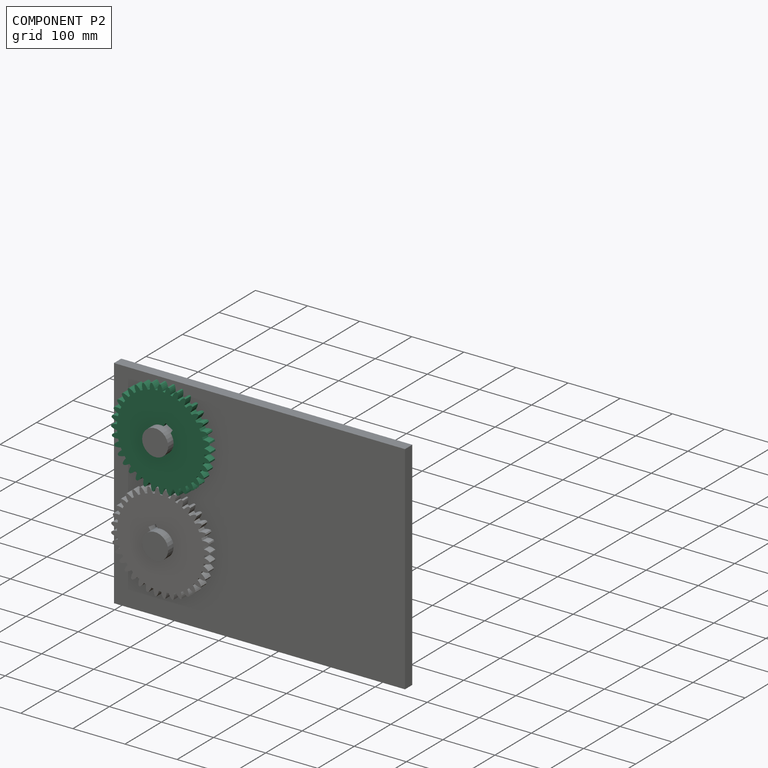
[diagram: component P2 — assembled]
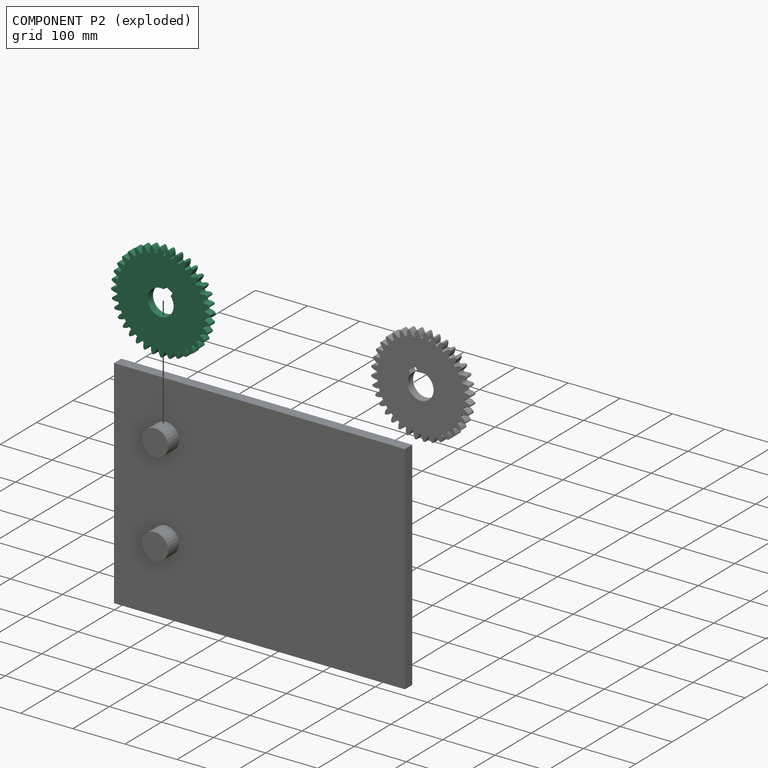
[diagram: component P2 — exploded]
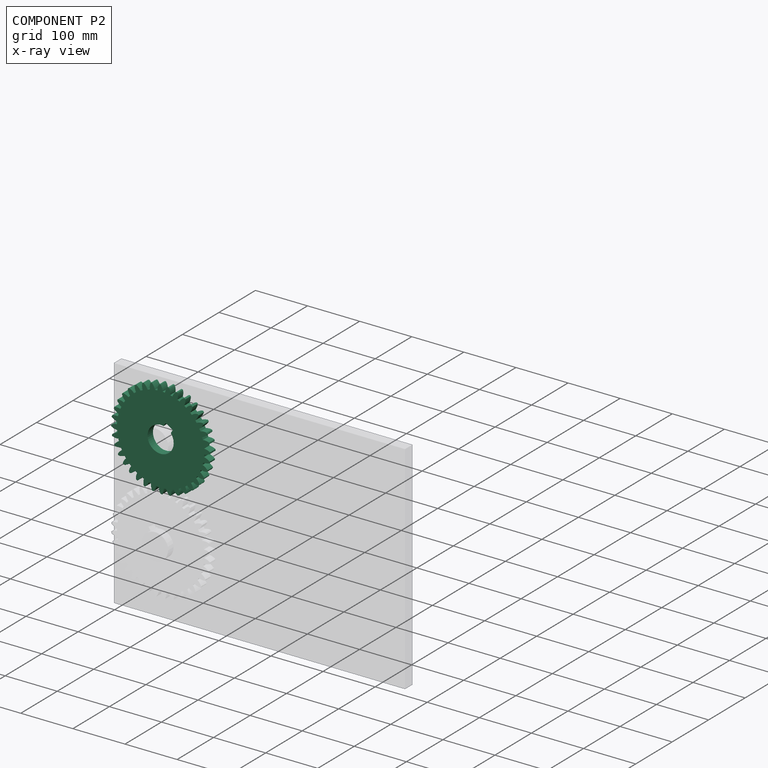
[diagram: component P2 — x-ray view]
COMPONENT P2 — same part as P0 (CADFS 00586315); its construction recipe is shown at P0.
Held by: REVOLUTE mate "Revolute 2" to P1.
PROVENANCE & LICENSES
Assembly (occurrences, transforms, mates, per-part STEP geometry): AutoMate dataset, Zenodo record 7776208, CC0.
Construction recipes: CADFS (HuggingFace VladPyatov/CADFS, CC-BY-4.0, layered over the ABC dataset), FeatureScript reconstruction programs keyed by ABC model id.
Join: ABC meta listings map ABC model id -> Onshape documentId; within a shared document, parts are matched by geometric signature (bounding-box dims + volume at 0.1% relative tolerance, exact B-rep face/solid counts).
Verification: 3 of this assembly's 3 components carry a recipe attachment, and every attachment is mesh-verified: the CADFS STEP and the AutoMate member STEP were compared as meshes in their shared local frame (symmetric sampled-point-to-mesh distance); worst across the 3 attachments: below the mesh-comparison resolution (tessellation chordal tolerance ~1.05 mm) on a 699 mm part.
Renders: orthographic iso camera (az 35 / el 25); the floor grid conveys scale (grid pitch printed in each image; no ruler). In the exploded view each component is displaced by its stored offset vector: the offsets alone carry the explosion direction (mate normal/axis signs are not orientation cues and do not encode it), and separation distances are assigned per mate-chain, not proportionally to assembly-order depth.
